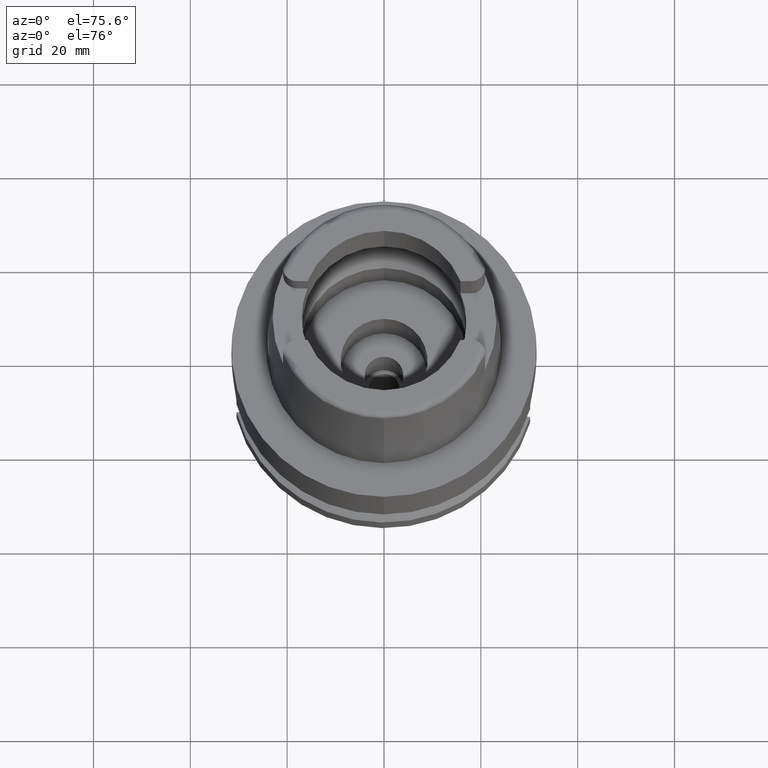
[diagram: clean part render]
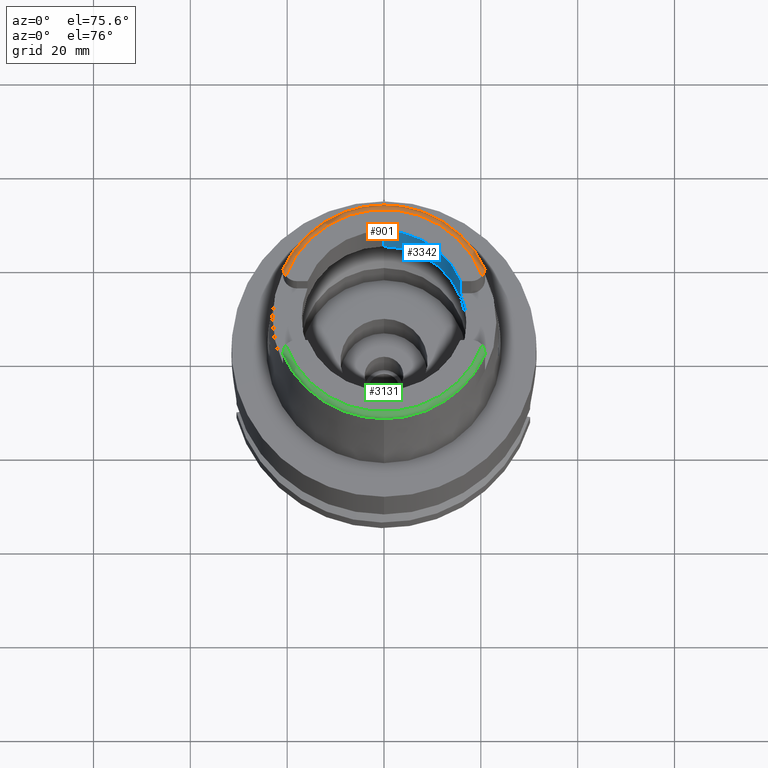
[diagram: same view with three faces highlighted in distinct colors, each labeled with its STEP entity id]
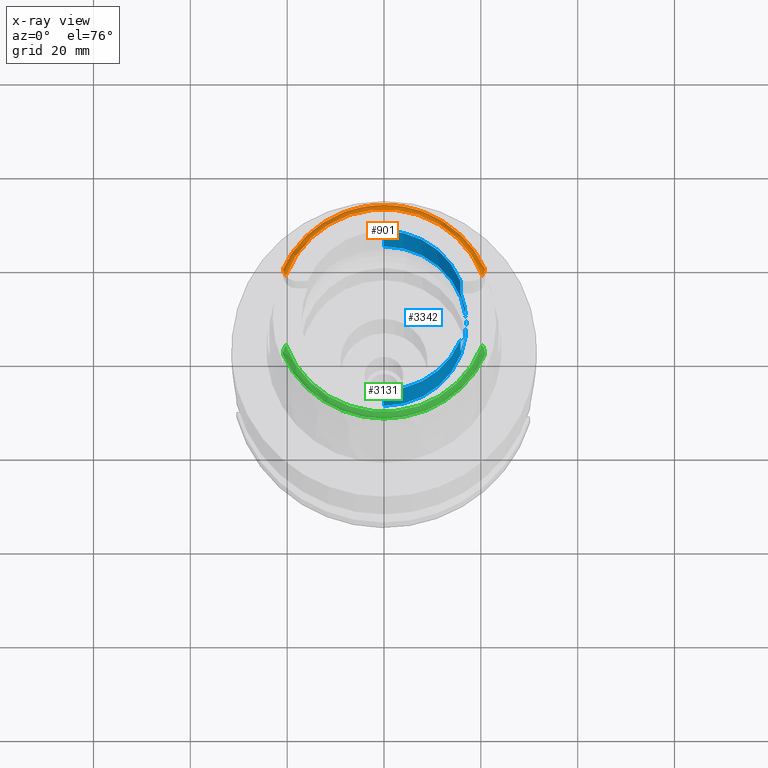
[diagram: x-ray of the same camera — body ghosted, the three highlighted faces saturated]
A machine part, auxiliary view with three faces highlighted in distinct colors.
The next image is the same camera in x-ray (body ghosted, the three faces saturated) — at least one of them is partly hidden behind the body in this view.
Their STEP definitions:

[orange] entity #901 — the highlighted toroidal blend (fillet) surface has major radius 21.5735 mm and minor (blend) radius 1.2 mm.
#19 = AXIS2_PLACEMENT_3D ( 'NONE', #5240, #565, #3999 ) ;
#122 = VERTEX_POINT ( 'NONE', #3692 ) ;
#175 = CARTESIAN_POINT ( 'NONE',  ( -20.80906268773524559, 8.560281569398261681, 31.56163859552248141 ) ) ;
#205 = AXIS2_PLACEMENT_3D ( 'NONE', #1644, #3362, #5092 ) ;
#208 = CARTESIAN_POINT ( 'NONE',  ( 20.84601487125984676, 8.777829675140450760, 31.39068741043436006 ) ) ;
#235 = CARTESIAN_POINT ( 'NONE',  ( -20.26871835884000106, 7.388795116669998997, 32.00000000000000000 ) ) ;
#240 = CARTESIAN_POINT ( 'NONE',  ( 20.71204105676314455, 8.206365946233109554, 31.77297712193750101 ) ) ;
#359 = DIRECTION ( 'NONE',  ( 0.0000000000000000000, 0.0000000000000000000, -1.000000000000000000 ) ) ;
#378 = AXIS2_PLACEMENT_3D ( 'NONE', #2865, #359, #2067 ) ;
#565 = DIRECTION ( 'NONE',  ( 0.0000000000000000000, 0.0000000000000000000, -1.000000000000000000 ) ) ;
#622 = CARTESIAN_POINT ( 'NONE',  ( -20.57381029341494028, 7.877483385533925464, 31.91006196410937790 ) ) ;
#679 = CARTESIAN_POINT ( 'NONE',  ( -20.74542709314114219, 8.312018737377133704, 31.71612403489280752 ) ) ;
#683 = CARTESIAN_POINT ( 'NONE',  ( 20.78414256686408734, 8.451659037551726428, 31.63372490285509286 ) ) ;
#710 = CARTESIAN_POINT ( 'NONE',  ( 20.64572498643821774, 8.035649236314357680, 31.85009017034028744 ) ) ;
#901 = ADVANCED_FACE ( 'NONE', ( #1277 ), #4804, .T. ) ;
#1007 = CARTESIAN_POINT ( 'NONE',  ( -20.76681274685468281, 8.384482231708849653, 31.67514572573269760 ) ) ;
#1034 = CARTESIAN_POINT ( 'NONE',  ( -20.74989535638592741, 8.326882889807963650, 31.70782526323140260 ) ) ;
#1039 = CARTESIAN_POINT ( 'NONE',  ( 20.80009600310853202, 8.517693437885027308, 31.59125992090389090 ) ) ;
#1057 = CARTESIAN_POINT ( 'NONE',  ( -20.40847157049481808, 7.581434768705404004, 31.98800826188124447 ) ) ;
#1087 = CARTESIAN_POINT ( 'NONE',  ( -20.86974110885000044, 9.111383541385000839, 30.85992743113000358 ) ) ;
#1088 = CARTESIAN_POINT ( 'NONE',  ( -20.77880875577244524, 8.429585642148854419, 31.64791935510168130 ) ) ;
#1098 = CARTESIAN_POINT ( 'NONE',  ( 20.84166295375575118, 8.745495707551821596, 31.41907370751975037 ) ) ;
#1124 = CARTESIAN_POINT ( 'NONE',  ( -20.26871835884000106, 7.388795116669998997, 32.00000000000000000 ) ) ;
#1277 = FACE_OUTER_BOUND ( 'NONE', #1441, .T. ) ;
#1431 = CARTESIAN_POINT ( 'NONE',  ( -20.73725657819956680, 8.285608679091190254, 31.73057194133578562 ) ) ;
#1441 = EDGE_LOOP ( 'NONE', ( #4960, #3166, #5561, #2906, #1650 ) ) ;
#1457 = CARTESIAN_POINT ( 'NONE',  ( -20.86085416457008535, 8.919153933194349904, 31.24705773583884039 ) ) ;
#1516 = CARTESIAN_POINT ( 'NONE',  ( -20.62690478890924695, 7.991818819640807980, 31.86790350978565556 ) ) ;
#1551 = CARTESIAN_POINT ( 'NONE',  ( 20.86838860360302661, 9.052906086555195131, 31.05036304899909538 ) ) ;
#1584 = CARTESIAN_POINT ( 'NONE',  ( 20.86641048721714142, 9.005296429202168440, 31.13312414013979179 ) ) ;
#1644 = CARTESIAN_POINT ( 'NONE',  ( 0.0000000000000000000, 0.0000000000000000000, 30.85992712280000205 ) ) ;
#1650 = ORIENTED_EDGE ( 'NONE', *, *, #3718, .F. ) ;
#1749 = CARTESIAN_POINT ( 'NONE',  ( 20.86965347761764988, 9.104849638212906271, 30.91382037118644277 ) ) ;
#1909 = CARTESIAN_POINT ( 'NONE',  ( -20.81375169831964200, 8.583250694055493568, 31.54536633545052737 ) ) ;
#1915 = CARTESIAN_POINT ( 'NONE',  ( 20.83084840234758062, 8.676376533731193774, 31.47545892852759408 ) ) ;
#1972 = CARTESIAN_POINT ( 'NONE',  ( 20.83372819169009915, 8.694027080963225629, 31.46139490437253983 ) ) ;
#1984 = CIRCLE ( 'NONE', #378, 22.77198729362000407 ) ;
#2039 = EDGE_CURVE ( 'NONE', #2094, #4496, #3726, .T. ) ;
#2067 = DIRECTION ( 'NONE',  ( -0.9164655183265837390, 0.4001136759951928745, 0.0000000000000000000 ) ) ;
#2094 = VERTEX_POINT ( 'NONE', #235 ) ;
#2178 = DIRECTION ( 'NONE',  ( 0.0000000000000000000, 0.0000000000000000000, -1.000000000000000000 ) ) ;
#2312 = CARTESIAN_POINT ( 'NONE',  ( -20.34072608308500918, 7.481961632819499997, 32.00000000000000000 ) ) ;
#2320 = CARTESIAN_POINT ( 'NONE',  ( 20.66146537208154399, 8.073952975888248673, 31.83375491812135394 ) ) ;
#2335 = CARTESIAN_POINT ( 'NONE',  ( -20.59437017999689701, 7.919798508882058385, 31.89544703327715069 ) ) ;
#2395 = CARTESIAN_POINT ( 'NONE',  ( -20.83224753212169844, 8.678742279666403547, 31.47570809896462052 ) ) ;
#2419 = CARTESIAN_POINT ( 'NONE',  ( -20.85615267778499060, 8.866693860964813823, 31.30487305461698710 ) ) ;
#2741 = CARTESIAN_POINT ( 'NONE',  ( -20.53153264467325201, 7.793936401986608864, 31.93704337487656630 ) ) ;
#2770 = CARTESIAN_POINT ( 'NONE',  ( -20.84238566263161019, 8.747478838737684725, 31.41928526657942911 ) ) ;
#2799 = CARTESIAN_POINT ( 'NONE',  ( 20.86788941734532798, 9.038514952096097232, 31.07787481050967315 ) ) ;
#2828 = CARTESIAN_POINT ( 'NONE',  ( 20.85688456158192849, 8.868753323900300245, 31.30501202162769303 ) ) ;
#2865 = CARTESIAN_POINT ( 'NONE',  ( 0.0000000000000000000, 0.0000000000000000000, 30.85992712280000205 ) ) ;
#2903 = CIRCLE ( 'NONE', #19, 21.57348458609000375 ) ;
#2906 = ORIENTED_EDGE ( 'NONE', *, *, #5279, .F. ) ;
#3021 = CARTESIAN_POINT ( 'NONE',  ( 20.86974092012000170, 9.111384045666000020, 30.85992712280000205 ) ) ;
#3057 = VERTEX_POINT ( 'NONE', #4189 ) ;
#3157 = CARTESIAN_POINT ( 'NONE',  ( -20.86272861606275697, 8.944392073634364948, 31.21656798767370589 ) ) ;
#3166 = ORIENTED_EDGE ( 'NONE', *, *, #4266, .T. ) ;
#3172 = EDGE_CURVE ( 'NONE', #122, #3621, #3448, .T. ) ;
#3192 = CARTESIAN_POINT ( 'NONE',  ( 20.86549846895972848, 8.987523739001883172, 31.15946505334705208 ) ) ;
#3213 = CARTESIAN_POINT ( 'NONE',  ( -20.50180382871114659, 7.739683747664546587, 31.95203304752500983 ) ) ;
#3217 = CARTESIAN_POINT ( 'NONE',  ( 20.82149984159849154, 8.623254487317622008, 31.51618333757327761 ) ) ;
#3234 = CARTESIAN_POINT ( 'NONE',  ( -20.79476361508489646, 8.495619495772032792, 31.60545568820712603 ) ) ;
#3242 = CARTESIAN_POINT ( 'NONE',  ( 20.86124277466929655, 8.921253742281772148, 31.24720643235586692 ) ) ;
#3274 = CARTESIAN_POINT ( 'NONE',  ( 20.82456226306695157, 8.640102353684538272, 31.50350089391260866 ) ) ;
#3302 = CARTESIAN_POINT ( 'NONE',  ( 20.67734772080290995, 8.113670110966902271, 31.81633136370319548 ) ) ;
#3359 = AXIS2_PLACEMENT_3D ( 'NONE', #5148, #2178, #3904 ) ;
#3362 = DIRECTION ( 'NONE',  ( 0.0000000000000000000, 0.0000000000000000000, -1.000000000000000000 ) ) ;
#3448 = B_SPLINE_CURVE_WITH_KNOTS ( 'NONE', 3,
 ( #3021, #1749, #4055, #1551, #2799, #1584, #3192, #3242, #2828, #208, #1098, #1972, #1915, #3274, #3217, #3690, #1039, #683, #5454, #4510, #5424, #4113, #4918, #240, #3302, #2320, #4943, #710, #5003, #4974, #4033 ),
 .UNSPECIFIED., .F., .F.,
 ( 4, 2, 2, 2, 2, 2, 2, 2, 2, 1, 2, 2, 1, 1, 2, 2, 4 ),
 ( 0.0000000000000000000, 0.1249999999999859002, 0.1874999999999787947, 0.2499999999999716893, 0.3749999999999574785, 0.4374999999999503730, 0.4687499999999498734, 0.4999999999999493738, 0.5624999999999418243, 0.5937499999999407141, 0.6093749999999401590, 0.6249999999999396039, 0.6874999999999422684, 0.7187499999999444888, 0.7343749999999467093, 0.7499999999999489297, 1.000000000000000000 ),
 .UNSPECIFIED. ) ;
#3531 = CIRCLE ( 'NONE', #205, 22.77198729362000051 ) ;
#3621 = VERTEX_POINT ( 'NONE', #5011 ) ;
#3690 = CARTESIAN_POINT ( 'NONE',  ( 20.80936960050917506, 8.560624221622525454, 31.56187452958342377 ) ) ;
#3692 = CARTESIAN_POINT ( 'NONE',  ( 20.86974092012000170, 9.111384045666000020, 30.85992712280000205 ) ) ;
#3718 = EDGE_CURVE ( 'NONE', #4496, #3057, #1984, .T. ) ;
#3726 = B_SPLINE_CURVE_WITH_KNOTS ( 'NONE', 3,
 ( #1124, #2312, #1057, #3213, #2741, #622, #2335, #4049, #1516, #5297, #4913, #4533, #4882, #1431, #679, #1034, #1007, #1088, #3234, #5416, #175, #1909, #2395, #2770, #4109, #2419, #1457, #3157, #4996, #4476, #4080 ),
 .UNSPECIFIED., .F., .F.,
 ( 4, 2, 2, 1, 2, 2, 1, 1, 2, 2, 2, 2, 2, 2, 2, 2, 4 ),
 ( 0.0000000000000000000, 0.1250000000000168199, 0.1875000000000252298, 0.2187500000000294209, 0.2343750000000298372, 0.2500000000000302536, 0.3125000000000348055, 0.3437500000000385803, 0.3593750000000397460, 0.3750000000000409117, 0.4375000000000496270, 0.4687500000000510147, 0.5000000000000524025, 0.6250000000000448530, 0.6875000000000387468, 0.7500000000000326406, 1.000000000000000000 ),
 .UNSPECIFIED. ) ;
#3904 = DIRECTION ( 'NONE',  ( -0.0009289215035770252184, -0.9999995685523270783, 0.0000000000000000000 ) ) ;
#3999 = DIRECTION ( 'NONE',  ( 0.0009289215035771249650, 0.9999995685523269673, 0.0000000000000000000 ) ) ;
#4033 = CARTESIAN_POINT ( 'NONE',  ( 20.26871835884000106, 7.388795116668999796, 32.00000000000000000 ) ) ;
#4049 = CARTESIAN_POINT ( 'NONE',  ( -20.61401589127937584, 7.962906442345825120, 31.87914576427198199 ) ) ;
#4055 = CARTESIAN_POINT ( 'NONE',  ( 20.86946548389318323, 9.089409137759220769, 30.96816647438076231 ) ) ;
#4080 = CARTESIAN_POINT ( 'NONE',  ( -20.86974110885000044, 9.111383541385000839, 30.85992743113000358 ) ) ;
#4109 = CARTESIAN_POINT ( 'NONE',  ( -20.85325728745857532, 8.838408088635304694, 31.33360665320691751 ) ) ;
#4113 = CARTESIAN_POINT ( 'NONE',  ( 20.75715793535653120, 8.351610576356410576, 31.69379482748318466 ) ) ;
#4189 = CARTESIAN_POINT ( 'NONE',  ( 0.0000000000000000000, 22.77198729362000051, 30.85992712280000205 ) ) ;
#4266 = EDGE_CURVE ( 'NONE', #2094, #3621, #2903, .T. ) ;
#4476 = CARTESIAN_POINT ( 'NONE',  ( -20.86956582032542684, 9.098312867637963208, 30.96773162144404523 ) ) ;
#4496 = VERTEX_POINT ( 'NONE', #1087 ) ;
#4510 = CARTESIAN_POINT ( 'NONE',  ( 20.76635057350797098, 8.384220870278003446, 31.67477841790549675 ) ) ;
#4533 = CARTESIAN_POINT ( 'NONE',  ( -20.69307287191580613, 8.153348358717220634, 31.79881482212951127 ) ) ;
#4804 = TOROIDAL_SURFACE ( 'NONE', #3359, 21.57348458609000019, 1.199999999999999956 ) ;
#4882 = CARTESIAN_POINT ( 'NONE',  ( -20.72468083842524678, 8.245969423725773240, 31.75185702828207823 ) ) ;
#4913 = CARTESIAN_POINT ( 'NONE',  ( -20.66201449054191031, 8.073875813116316635, 31.83442308709496515 ) ) ;
#4918 = CARTESIAN_POINT ( 'NONE',  ( 20.73780253926878814, 8.285708046393811088, 31.73118900364120520 ) ) ;
#4943 = CARTESIAN_POINT ( 'NONE',  ( 20.65064971340632383, 8.047481276856759180, 31.84511354664235228 ) ) ;
#4960 = ORIENTED_EDGE ( 'NONE', *, *, #2039, .F. ) ;
#4974 = CARTESIAN_POINT ( 'NONE',  ( 20.41275652417560948, 7.575157540951524382, 32.00000000000000711 ) ) ;
#4996 = CARTESIAN_POINT ( 'NONE',  ( -20.86948310530593531, 9.049570018712625341, 31.07732922262181674 ) ) ;
#5003 = CARTESIAN_POINT ( 'NONE',  ( 20.53976183521289300, 7.786974474867727203, 31.95202885450888886 ) ) ;
#5011 = CARTESIAN_POINT ( 'NONE',  ( 20.26871835884000106, 7.388795116668999796, 32.00000000000000000 ) ) ;
#5092 = DIRECTION ( 'NONE',  ( 0.0000000000000000000, 1.000000000000000000, 0.0000000000000000000 ) ) ;
#5148 = CARTESIAN_POINT ( 'NONE',  ( 0.0000000000000000000, 0.0000000000000000000, 30.80000000000000071 ) ) ;
#5240 = CARTESIAN_POINT ( 'NONE',  ( 0.0000000000000000000, 0.0000000000000000000, 32.00000000000000000 ) ) ;
#5279 = EDGE_CURVE ( 'NONE', #3057, #122, #3531, .T. ) ;
#5297 = CARTESIAN_POINT ( 'NONE',  ( -20.63384484939731678, 8.007769306895886174, 31.86151815644501539 ) ) ;
#5416 = CARTESIAN_POINT ( 'NONE',  ( -20.79974198765554050, 8.517360902585114246, 31.59103044741758737 ) ) ;
#5424 = CARTESIAN_POINT ( 'NONE',  ( 20.75996049868975746, 8.361419618406486620, 31.68812685937447071 ) ) ;
#5454 = CARTESIAN_POINT ( 'NONE',  ( 20.77565494556549908, 8.418232721363352766, 31.65455411757330140 ) ) ;
#5561 = ORIENTED_EDGE ( 'NONE', *, *, #3172, .F. ) ;

[blue] entity #3342 — the highlighted cylindrical surface (partial cylindrical patch) has radius 17 mm, axis along (0, 0, -1).
#203 = VECTOR ( 'NONE', #3108, 1000.000000000000000 ) ;
#282 = ORIENTED_EDGE ( 'NONE', *, *, #5554, .T. ) ;
#447 = EDGE_CURVE ( 'NONE', #1054, #1182, #1053, .T. ) ;
#527 = CARTESIAN_POINT ( 'NONE',  ( 15.80149043602999903, -6.270000000000000462, 32.00000000000000000 ) ) ;
#537 = LINE ( 'NONE', #2334, #203 ) ;
#717 = EDGE_CURVE ( 'NONE', #1054, #2024, #3717, .T. ) ;
#783 = DIRECTION ( 'NONE',  ( 0.9294994374136111848, 0.3688235294118045182, 0.0000000000000000000 ) ) ;
#791 = DIRECTION ( 'NONE',  ( 0.0000000000000000000, -1.000000000000000000, 0.0000000000000000000 ) ) ;
#835 = CARTESIAN_POINT ( 'NONE',  ( 15.80149043602999903, -6.270000000000000462, 22.00000000000000000 ) ) ;
#842 = VECTOR ( 'NONE', #1939, 1000.000000000000000 ) ;
#845 = AXIS2_PLACEMENT_3D ( 'NONE', #1949, #3566, #3615 ) ;
#865 = EDGE_CURVE ( 'NONE', #4710, #3387, #3872, .T. ) ;
#953 = VERTEX_POINT ( 'NONE', #5222 ) ;
#1013 = AXIS2_PLACEMENT_3D ( 'NONE', #4232, #5547, #783 ) ;
#1053 = LINE ( 'NONE', #3231, #842 ) ;
#1054 = VERTEX_POINT ( 'NONE', #1498 ) ;
#1095 = EDGE_CURVE ( 'NONE', #4710, #1182, #3268, .T. ) ;
#1102 = EDGE_CURVE ( 'NONE', #953, #3259, #5167, .T. ) ;
#1182 = VERTEX_POINT ( 'NONE', #4516 ) ;
#1285 = DIRECTION ( 'NONE',  ( 0.0000000000000000000, 0.0000000000000000000, -1.000000000000000000 ) ) ;
#1374 = VECTOR ( 'NONE', #2634, 1000.000000000000000 ) ;
#1463 = DIRECTION ( 'NONE',  ( 0.0000000000000000000, -1.000000000000000000, 0.0000000000000000000 ) ) ;
#1465 = CARTESIAN_POINT ( 'NONE',  ( 0.0000000000000000000, -17.00000000000000000, 18.99602540378000270 ) ) ;
#1498 = CARTESIAN_POINT ( 'NONE',  ( 15.80149043602999903, 6.270000000000000462, 32.00000000000000000 ) ) ;
#1773 = ORIENTED_EDGE ( 'NONE', *, *, #447, .F. ) ;
#1786 = ORIENTED_EDGE ( 'NONE', *, *, #1095, .T. ) ;
#1939 = DIRECTION ( 'NONE',  ( 0.0000000000000000000, 0.0000000000000000000, -1.000000000000000000 ) ) ;
#1949 = CARTESIAN_POINT ( 'NONE',  ( 0.0000000000000000000, 0.0000000000000000000, 22.00000000000000000 ) ) ;
#2017 = ORIENTED_EDGE ( 'NONE', *, *, #865, .F. ) ;
#2024 = VERTEX_POINT ( 'NONE', #3942 ) ;
#2334 = CARTESIAN_POINT ( 'NONE',  ( 0.0000000000000000000, 17.00000000000000000, 18.99602540378000270 ) ) ;
#2357 = CARTESIAN_POINT ( 'NONE',  ( 0.0000000000000000000, -17.00000000000000000, 32.00000000000000000 ) ) ;
#2372 = AXIS2_PLACEMENT_3D ( 'NONE', #4211, #4052, #1463 ) ;
#2480 = ORIENTED_EDGE ( 'NONE', *, *, #3677, .T. ) ;
#2507 = VERTEX_POINT ( 'NONE', #2357 ) ;
#2634 = DIRECTION ( 'NONE',  ( 0.0000000000000000000, 0.0000000000000000000, 1.000000000000000000 ) ) ;
#2689 = DIRECTION ( 'NONE',  ( 0.0000000000000000000, 1.000000000000000000, 0.0000000000000000000 ) ) ;
#2899 = CARTESIAN_POINT ( 'NONE',  ( 15.80149043602999903, -6.270000000000000462, 22.00000000000000000 ) ) ;
#3108 = DIRECTION ( 'NONE',  ( 0.0000000000000000000, -7.376457760500000442E-14, 1.000000000000000000 ) ) ;
#3123 = CYLINDRICAL_SURFACE ( 'NONE', #3239, 17.00000000000000000 ) ;
#3219 = CARTESIAN_POINT ( 'NONE',  ( 0.0000000000000000000, 0.0000000000000000000, 18.99602540378000270 ) ) ;
#3230 = ORIENTED_EDGE ( 'NONE', *, *, #4274, .F. ) ;
#3231 = CARTESIAN_POINT ( 'NONE',  ( 15.80149043602999903, 6.270000000000000462, 32.00000000000000000 ) ) ;
#3239 = AXIS2_PLACEMENT_3D ( 'NONE', #5528, #1285, #791 ) ;
#3259 = VERTEX_POINT ( 'NONE', #1465 ) ;
#3268 = CIRCLE ( 'NONE', #845, 17.00000000000000000 ) ;
#3342 = ADVANCED_FACE ( 'NONE', ( #4667 ), #3123, .F. ) ;
#3364 = LINE ( 'NONE', #3392, #5052 ) ;
#3387 = VERTEX_POINT ( 'NONE', #527 ) ;
#3392 = CARTESIAN_POINT ( 'NONE',  ( 0.0000000000000000000, -17.00000000000000000, 18.99602540378000270 ) ) ;
#3566 = DIRECTION ( 'NONE',  ( 0.0000000000000000000, 0.0000000000000000000, 1.000000000000000000 ) ) ;
#3615 = DIRECTION ( 'NONE',  ( 0.9294994374136111848, -0.3688235294118045182, 0.0000000000000000000 ) ) ;
#3677 = EDGE_CURVE ( 'NONE', #3259, #2507, #3364, .T. ) ;
#3717 = CIRCLE ( 'NONE', #1013, 17.00000000000000000 ) ;
#3836 = ORIENTED_EDGE ( 'NONE', *, *, #717, .T. ) ;
#3872 = LINE ( 'NONE', #835, #1374 ) ;
#3942 = CARTESIAN_POINT ( 'NONE',  ( 0.0000000000000000000, 17.00000000000000000, 32.00000000000000000 ) ) ;
#4009 = EDGE_LOOP ( 'NONE', ( #1773, #3836, #3230, #4459, #2480, #282, #2017, #1786 ) ) ;
#4052 = DIRECTION ( 'NONE',  ( 0.0000000000000000000, 0.0000000000000000000, 1.000000000000000000 ) ) ;
#4211 = CARTESIAN_POINT ( 'NONE',  ( 0.0000000000000000000, 0.0000000000000000000, 32.00000000000000000 ) ) ;
#4232 = CARTESIAN_POINT ( 'NONE',  ( 0.0000000000000000000, 0.0000000000000000000, 32.00000000000000000 ) ) ;
#4274 = EDGE_CURVE ( 'NONE', #953, #2024, #537, .T. ) ;
#4459 = ORIENTED_EDGE ( 'NONE', *, *, #1102, .T. ) ;
#4516 = CARTESIAN_POINT ( 'NONE',  ( 15.80149043602999903, 6.270000000000000462, 22.00000000000000000 ) ) ;
#4667 = FACE_OUTER_BOUND ( 'NONE', #4009, .T. ) ;
#4710 = VERTEX_POINT ( 'NONE', #2899 ) ;
#5052 = VECTOR ( 'NONE', #5120, 1000.000000000000000 ) ;
#5120 = DIRECTION ( 'NONE',  ( 0.0000000000000000000, 7.376457760500000442E-14, 1.000000000000000000 ) ) ;
#5167 = CIRCLE ( 'NONE', #5439, 17.00000000000000000 ) ;
#5222 = CARTESIAN_POINT ( 'NONE',  ( 0.0000000000000000000, 17.00000000000000000, 18.99602540378000270 ) ) ;
#5338 = DIRECTION ( 'NONE',  ( 0.0000000000000000000, 0.0000000000000000000, -1.000000000000000000 ) ) ;
#5439 = AXIS2_PLACEMENT_3D ( 'NONE', #3219, #5338, #2689 ) ;
#5444 = CIRCLE ( 'NONE', #2372, 17.00000000000000000 ) ;
#5528 = CARTESIAN_POINT ( 'NONE',  ( 0.0000000000000000000, 0.0000000000000000000, 37.90000000000000568 ) ) ;
#5547 = DIRECTION ( 'NONE',  ( 0.0000000000000000000, 0.0000000000000000000, 1.000000000000000000 ) ) ;
#5554 = EDGE_CURVE ( 'NONE', #2507, #3387, #5444, .T. ) ;

[green] entity #3131 — the highlighted toroidal blend (fillet) surface has major radius 21.5735 mm and minor (blend) radius 1.2 mm.
#29 = ORIENTED_EDGE ( 'NONE', *, *, #2476, .F. ) ;
#43 = DIRECTION ( 'NONE',  ( -0.0009289215035771249650, -0.9999995685523269673, 0.0000000000000000000 ) ) ;
#67 = DIRECTION ( 'NONE',  ( 0.0000000000000000000, 0.0000000000000000000, -1.000000000000000000 ) ) ;
#135 = CARTESIAN_POINT ( 'NONE',  ( -20.86946548318643124, -9.089409065074692151, 30.96816673683105847 ) ) ;
#172 = CARTESIAN_POINT ( 'NONE',  ( 0.0000000000000000000, 0.0000000000000000000, 30.85992712280000205 ) ) ;
#196 = CARTESIAN_POINT ( 'NONE',  ( 20.86948309750514952, -9.049570688872869084, 31.07732771112156200 ) ) ;
#226 = CARTESIAN_POINT ( 'NONE',  ( 20.26871835884000106, -7.388795116669998997, 32.00000000000000000 ) ) ;
#348 = EDGE_LOOP ( 'NONE', ( #5114, #4419, #29, #1842, #1403 ) ) ;
#356 = CARTESIAN_POINT ( 'NONE',  ( 20.86974110885000044, -9.111383541384000750, 30.85992743113000358 ) ) ;
#428 = EDGE_CURVE ( 'NONE', #1321, #1512, #3262, .T. ) ;
#552 = CARTESIAN_POINT ( 'NONE',  ( -20.80009705000552245, -8.517698145240670371, 31.59125676151339945 ) ) ;
#579 = CARTESIAN_POINT ( 'NONE',  ( -20.65065059757280963, -8.047483405083440289, 31.84511261016128358 ) ) ;
#591 = CARTESIAN_POINT ( 'NONE',  ( 20.74542578600811638, -8.312014441363468009, 31.71612637819148262 ) ) ;
#594 = DIRECTION ( 'NONE',  ( 0.0000000000000000000, 0.0000000000000000000, -1.000000000000000000 ) ) ;
#616 = CARTESIAN_POINT ( 'NONE',  ( 20.86085428461602476, -8.919155404757747263, 31.24705605206819570 ) ) ;
#634 = CARTESIAN_POINT ( 'NONE',  ( -20.84166317539037294, -8.745497303985857229, 31.41907229293450854 ) ) ;
#671 = CARTESIAN_POINT ( 'NONE',  ( 20.79974142288569539, -8.517358384647469194, 31.59103212592819787 ) ) ;
#767 = EDGE_CURVE ( 'NONE', #1512, #3142, #4895, .T. ) ;
#839 = B_SPLINE_CURVE_WITH_KNOTS ( 'NONE', 3,
 ( #226, #4470, #5293, #1050, #3181, #4875, #4044, #5352, #4930, #1875, #1960, #3598, #1029, #2733, #591, #4494, #1002, #3574, #1081, #671, #3676, #4444, #1509, #5321, #1904, #5379, #616, #2330, #196, #1483, #2814 ),
 .UNSPECIFIED., .F., .F.,
 ( 4, 2, 2, 1, 2, 2, 1, 1, 2, 2, 2, 2, 2, 2, 2, 2, 4 ),
 ( 0.0000000000000000000, 0.1249999999999881206, 0.1874999999999830691, 0.2187499999999803768, 0.2343749999999773237, 0.2499999999999742428, 0.3124999999999649725, 0.3437499999999623634, 0.3593749999999630851, 0.3749999999999638067, 0.4374999999999623634, 0.4687499999999645839, 0.4999999999999669154, 0.6249999999999716893, 0.6874999999999784617, 0.7499999999999812372, 1.000000000000000000 ),
 .UNSPECIFIED. ) ;
#993 = CARTESIAN_POINT ( 'NONE',  ( -20.85688457533439077, -8.868753604657610978, 31.30501164410598491 ) ) ;
#1002 = CARTESIAN_POINT ( 'NONE',  ( 20.76681164457378159, -8.384478201936481412, 31.67514810046874985 ) ) ;
#1029 = CARTESIAN_POINT ( 'NONE',  ( 20.72467963849413408, -8.245965811122731637, 31.75185888792795552 ) ) ;
#1044 = CARTESIAN_POINT ( 'NONE',  ( -20.86549842447871583, -8.987522976322198431, 31.15946612166120033 ) ) ;
#1050 = CARTESIAN_POINT ( 'NONE',  ( 20.50180385236131997, -7.739683785187589038, 31.95203288786278861 ) ) ;
#1081 = CARTESIAN_POINT ( 'NONE',  ( 20.79476296881765052, -8.495616716502429000, 31.60545750243591456 ) ) ;
#1166 = TOROIDAL_SURFACE ( 'NONE', #3327, 21.57348458609000019, 1.199999999999999956 ) ;
#1193 = AXIS2_PLACEMENT_3D ( 'NONE', #5037, #4553, #1619 ) ;
#1321 = VERTEX_POINT ( 'NONE', #356 ) ;
#1403 = ORIENTED_EDGE ( 'NONE', *, *, #3608, .F. ) ;
#1420 = CARTESIAN_POINT ( 'NONE',  ( -20.73780482900809119, -8.285715308770766896, 31.73118515451164257 ) ) ;
#1473 = CARTESIAN_POINT ( 'NONE',  ( -20.86974104081000192, -9.111384059199000518, 30.85992588122999791 ) ) ;
#1483 = CARTESIAN_POINT ( 'NONE',  ( 20.86956582154074624, -9.098312958267614547, 30.96773087396823243 ) ) ;
#1509 = CARTESIAN_POINT ( 'NONE',  ( 20.83224745456553251, -8.678741672184459688, 31.47570864658113265 ) ) ;
#1512 = VERTEX_POINT ( 'NONE', #3809 ) ;
#1528 = CARTESIAN_POINT ( 'NONE',  ( -20.82150037339846094, -8.623257361304890622, 31.51618118515616018 ) ) ;
#1619 = DIRECTION ( 'NONE',  ( -0.0009289215035765249675, -0.9999995685523268563, 0.0000000000000000000 ) ) ;
#1739 = AXIS2_PLACEMENT_3D ( 'NONE', #172, #594, #2786 ) ;
#1842 = ORIENTED_EDGE ( 'NONE', *, *, #3783, .T. ) ;
#1847 = CARTESIAN_POINT ( 'NONE',  ( -20.75996255181918926, -8.361426833129559810, 31.68812271803957969 ) ) ;
#1875 = CARTESIAN_POINT ( 'NONE',  ( 20.63384551504040232, -8.007770852804613426, 31.86151751120270958 ) ) ;
#1904 = CARTESIAN_POINT ( 'NONE',  ( 20.85325738496664272, -8.838408958604979659, 31.33360584077810174 ) ) ;
#1952 = CARTESIAN_POINT ( 'NONE',  ( -20.83084879762021302, -8.676378913014684002, 31.47545702791200384 ) ) ;
#1960 = CARTESIAN_POINT ( 'NONE',  ( 20.66201431879104788, -8.073875474767278959, 31.83442327313085229 ) ) ;
#2001 = CARTESIAN_POINT ( 'NONE',  ( 20.26871835884000106, -7.388795116669998997, 32.00000000000000000 ) ) ;
#2159 = DIRECTION ( 'NONE',  ( -0.0009289215035770252184, -0.9999995685523270783, 0.0000000000000000000 ) ) ;
#2265 = CARTESIAN_POINT ( 'NONE',  ( -20.78414401093677810, -8.451664827864444618, 31.63372127327913930 ) ) ;
#2299 = CARTESIAN_POINT ( 'NONE',  ( -20.64572550639493898, -8.035650476018291855, 31.85008962763714990 ) ) ;
#2330 = CARTESIAN_POINT ( 'NONE',  ( 20.86272875683678762, -8.944394067808278947, 31.21656550045711853 ) ) ;
#2476 = EDGE_CURVE ( 'NONE', #2843, #1321, #839, .T. ) ;
#2535 = CARTESIAN_POINT ( 'NONE',  ( -20.26871835884000106, -7.388795116668999796, 32.00000000000000000 ) ) ;
#2722 = CARTESIAN_POINT ( 'NONE',  ( -20.66146655126155807, -8.073955897780372482, 31.83375358717267645 ) ) ;
#2733 = CARTESIAN_POINT ( 'NONE',  ( 20.73725530461514310, -8.285604633315404755, 31.73057409739946877 ) ) ;
#2781 = CARTESIAN_POINT ( 'NONE',  ( -20.84601502962144792, -8.777830916958118124, 31.39068624861472756 ) ) ;
#2786 = DIRECTION ( 'NONE',  ( 0.9164655183265837390, -0.4001136759951928745, 0.0000000000000000000 ) ) ;
#2804 = CIRCLE ( 'NONE', #5318, 21.57348458609000375 ) ;
#2814 = CARTESIAN_POINT ( 'NONE',  ( 20.86974110885000044, -9.111383541384000750, 30.85992743113000358 ) ) ;
#2839 = CARTESIAN_POINT ( 'NONE',  ( -20.53976272684292326, -7.786976255885655007, 31.95202868084388825 ) ) ;
#2843 = VERTEX_POINT ( 'NONE', #2001 ) ;
#3023 = VERTEX_POINT ( 'NONE', #2535 ) ;
#3131 = ADVANCED_FACE ( 'NONE', ( #5160 ), #1166, .T. ) ;
#3142 = VERTEX_POINT ( 'NONE', #3463 ) ;
#3147 = CARTESIAN_POINT ( 'NONE',  ( -20.71204325470662155, -8.206372167554695451, 31.77297403584157465 ) ) ;
#3181 = CARTESIAN_POINT ( 'NONE',  ( 20.53153274705246645, -7.793936583643755078, 31.93704316531990273 ) ) ;
#3248 = CARTESIAN_POINT ( 'NONE',  ( -20.80937042043940721, -8.560628198628490892, 31.56187173948266178 ) ) ;
#3262 = CIRCLE ( 'NONE', #1739, 22.77198729362000407 ) ;
#3284 = CARTESIAN_POINT ( 'NONE',  ( 0.0000000000000000000, 0.0000000000000000000, 32.00000000000000000 ) ) ;
#3327 = AXIS2_PLACEMENT_3D ( 'NONE', #4740, #4299, #2159 ) ;
#3463 = CARTESIAN_POINT ( 'NONE',  ( -20.86974104081000192, -9.111384059199000518, 30.85992588122999791 ) ) ;
#3569 = CARTESIAN_POINT ( 'NONE',  ( -20.75716014058919612, -8.351618218395671533, 31.69379048261531651 ) ) ;
#3574 = CARTESIAN_POINT ( 'NONE',  ( 20.77880784884762377, -8.429582097603608659, 31.64792153712383538 ) ) ;
#3598 = CARTESIAN_POINT ( 'NONE',  ( 20.69307202508431232, -8.153346154914039801, 31.79881588117668301 ) ) ;
#3608 = EDGE_CURVE ( 'NONE', #3142, #3023, #4584, .T. ) ;
#3668 = CARTESIAN_POINT ( 'NONE',  ( -20.82456276512413496, -8.640105152458689375, 31.50349875786549703 ) ) ;
#3676 = CARTESIAN_POINT ( 'NONE',  ( 20.80906227501910877, -8.560279586142987895, 31.56163997635589524 ) ) ;
#3779 = CARTESIAN_POINT ( 'NONE',  ( -20.26871835884000106, -7.388795116668999796, 32.00000000000000000 ) ) ;
#3783 = EDGE_CURVE ( 'NONE', #2843, #3023, #2804, .T. ) ;
#3809 = CARTESIAN_POINT ( 'NONE',  ( 0.0000000000000000000, -22.77198729362000051, 30.85992712280000205 ) ) ;
#3984 = CARTESIAN_POINT ( 'NONE',  ( -20.76635246513502508, -8.384227731419164442, 31.67477439142453477 ) ) ;
#4044 = CARTESIAN_POINT ( 'NONE',  ( 20.59437049416706245, -7.919799167614975488, 31.89544668526341553 ) ) ;
#4095 = CARTESIAN_POINT ( 'NONE',  ( -20.86641046674386502, -9.005296014311177544, 31.13312478658987459 ) ) ;
#4299 = DIRECTION ( 'NONE',  ( 0.0000000000000000000, 0.0000000000000000000, -1.000000000000000000 ) ) ;
#4419 = ORIENTED_EDGE ( 'NONE', *, *, #428, .F. ) ;
#4432 = CARTESIAN_POINT ( 'NONE',  ( -20.77565660240151857, -8.418239049998533119, 31.65455027384190956 ) ) ;
#4444 = CARTESIAN_POINT ( 'NONE',  ( 20.81375137129987962, -8.583249057464797716, 31.54536750329013728 ) ) ;
#4470 = CARTESIAN_POINT ( 'NONE',  ( 20.34072592846763428, -7.481961432769263176, 32.00000000000000000 ) ) ;
#4489 = CARTESIAN_POINT ( 'NONE',  ( -20.83372853962027804, -8.694029258406684946, 31.46139312363947127 ) ) ;
#4494 = CARTESIAN_POINT ( 'NONE',  ( 20.74989398420022368, -8.326878287084870323, 31.70782781325782196 ) ) ;
#4553 = DIRECTION ( 'NONE',  ( 0.0000000000000000000, 0.0000000000000000000, -1.000000000000000000 ) ) ;
#4584 = B_SPLINE_CURVE_WITH_KNOTS ( 'NONE', 3,
 ( #1473, #4950, #135, #5372, #4924, #4095, #1044, #4980, #993, #2781, #634, #4489, #1952, #3668, #1528, #3248, #552, #2265, #4432, #3984, #1847, #3569, #1420, #3147, #4866, #2722, #579, #2299, #2839, #4601, #3779 ),
 .UNSPECIFIED., .F., .F.,
 ( 4, 2, 2, 2, 2, 2, 2, 2, 2, 1, 2, 2, 1, 1, 2, 2, 4 ),
 ( 0.0000000000000000000, 0.1250000000000015821, 0.1874999999999983069, 0.2499999999999950595, 0.3749999999999950595, 0.4374999999999943934, 0.4687499999999937272, 0.4999999999999930611, 0.5624999999999907851, 0.5937499999999910072, 0.6093749999999910072, 0.6249999999999911182, 0.6874999999999933387, 0.7187499999999947820, 0.7343749999999948930, 0.7499999999999948930, 1.000000000000000000 ),
 .UNSPECIFIED. ) ;
#4601 = CARTESIAN_POINT ( 'NONE',  ( -20.41275745814655806, -7.575158749361044386, 32.00000000000000711 ) ) ;
#4740 = CARTESIAN_POINT ( 'NONE',  ( 0.0000000000000000000, 0.0000000000000000000, 30.80000000000000071 ) ) ;
#4866 = CARTESIAN_POINT ( 'NONE',  ( -20.67734929621564532, -8.113674159763357707, 31.81632946207159307 ) ) ;
#4875 = CARTESIAN_POINT ( 'NONE',  ( 20.57381053370200519, -7.877483870707118641, 31.91006166474272376 ) ) ;
#4895 = CIRCLE ( 'NONE', #1193, 22.77198729362000051 ) ;
#4924 = CARTESIAN_POINT ( 'NONE',  ( -20.86788940700328254, -9.038514674839301932, 31.07787532993837232 ) ) ;
#4930 = CARTESIAN_POINT ( 'NONE',  ( 20.62690523378737595, -7.991819831467397606, 31.86790307009086831 ) ) ;
#4950 = CARTESIAN_POINT ( 'NONE',  ( -20.86965347740291676, -9.104849622199402859, 30.91382050326033948 ) ) ;
#4980 = CARTESIAN_POINT ( 'NONE',  ( -20.86124275138732642, -8.921253519771633833, 31.24720661236760222 ) ) ;
#5037 = CARTESIAN_POINT ( 'NONE',  ( 0.0000000000000000000, 0.0000000000000000000, 30.85992712280000205 ) ) ;
#5114 = ORIENTED_EDGE ( 'NONE', *, *, #767, .F. ) ;
#5160 = FACE_OUTER_BOUND ( 'NONE', #348, .T. ) ;
#5293 = CARTESIAN_POINT ( 'NONE',  ( 20.40847142937132119, -7.581434534578015416, 31.98800822196569982 ) ) ;
#5318 = AXIS2_PLACEMENT_3D ( 'NONE', #3284, #67, #43 ) ;
#5321 = CARTESIAN_POINT ( 'NONE',  ( 20.84238568469986674, -8.747478914473164835, 31.41928528811767407 ) ) ;
#5352 = CARTESIAN_POINT ( 'NONE',  ( 20.61401628353507931, -7.962907308378873061, 31.87914536199803450 ) ) ;
#5372 = CARTESIAN_POINT ( 'NONE',  ( -20.86838859643787814, -9.052905868042126158, 31.05036350449772442 ) ) ;
#5379 = CARTESIAN_POINT ( 'NONE',  ( 20.85615278788795024, -8.866694957452439851, 31.30487195672418466 ) ) ;